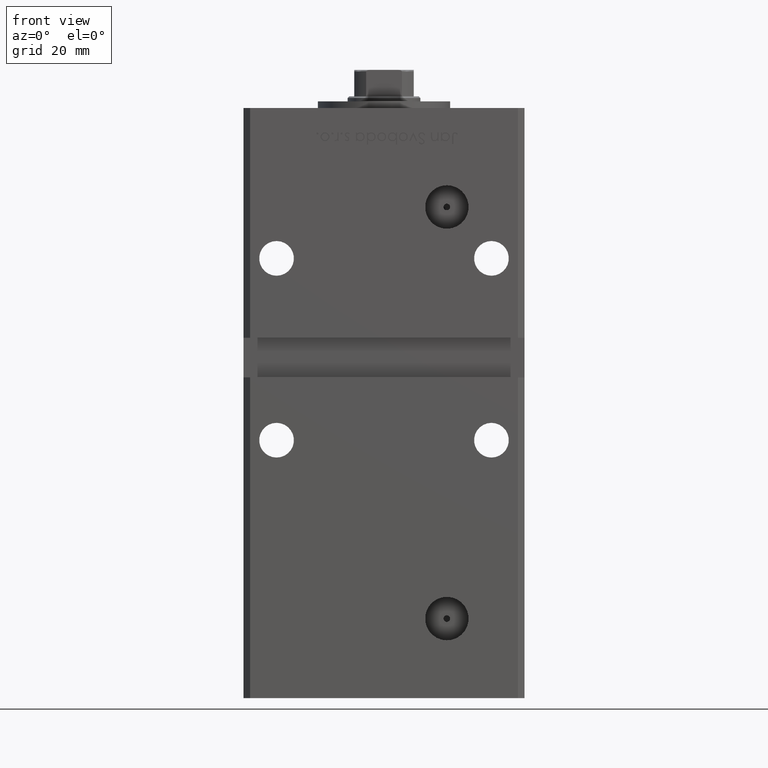
[diagram: clean part render]
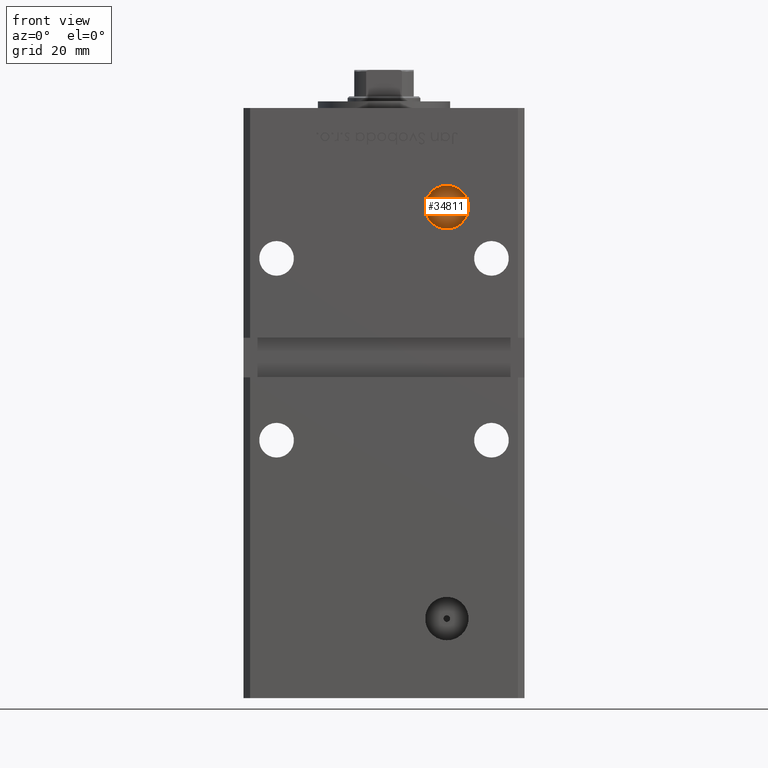
[diagram: same view with one face highlighted and labeled with its STEP entity id]
A machine part, front view. The second image highlights one B-rep face of the part: STEP entity #34811.
In plain terms, the highlighted planar face has unit normal (0, -1, 0).
Its self-contained STEP definition (entity closure, byte-faithful):
#587 = AXIS2_PLACEMENT_3D ( 'NONE', #44712, #43925, #44449 ) ;
#655 = EDGE_CURVE ( 'NONE', #7013, #27633, #42274, .T. ) ;
#936 = DIRECTION ( 'NONE',  ( 0.000000000000000000, -1.000000000000000000, 0.000000000000000000 ) ) ;
#1167 = AXIS2_PLACEMENT_3D ( 'NONE', #20500, #7879, #8138 ) ;
#3209 = CARTESIAN_POINT ( 'NONE',  ( 18.99999999999997513, -24.50000000000000711, 133.5000000000000000 ) ) ;
#3896 = ORIENTED_EDGE ( 'NONE', *, *, #6437, .F. ) ;
#4097 = FACE_OUTER_BOUND ( 'NONE', #39286, .T. ) ;
#6437 = EDGE_CURVE ( 'NONE', #36173, #33851, #28922, .T. ) ;
#7013 = VERTEX_POINT ( 'NONE', #11858 ) ;
#7056 = EDGE_CURVE ( 'NONE', #33851, #36173, #16886, .T. ) ;
#7192 = AXIS2_PLACEMENT_3D ( 'NONE', #29734, #46156, #13044 ) ;
#7879 = DIRECTION ( 'NONE',  ( 0.000000000000000000, -1.000000000000000000, 0.000000000000000000 ) ) ;
#8138 = DIRECTION ( 'NONE',  ( 0.000000000000000000, -0.000000000000000000, -1.000000000000000000 ) ) ;
#11858 = CARTESIAN_POINT ( 'NONE',  ( 18.99999999999997513, -24.50000000000000711, 132.5000000000000000 ) ) ;
#13044 = DIRECTION ( 'NONE',  ( 0.000000000000000000, 0.000000000000000000, -1.000000000000000000 ) ) ;
#13207 = CIRCLE ( 'NONE', #7192, 1.000000000000000888 ) ;
#15209 = ORIENTED_EDGE ( 'NONE', *, *, #7056, .F. ) ;
#16886 = CIRCLE ( 'NONE', #587, 6.580000000000002736 ) ;
#18163 = AXIS2_PLACEMENT_3D ( 'NONE', #21905, #936, #21100 ) ;
#18846 = EDGE_LOOP ( 'NONE', ( #35392, #37004 ) ) ;
#20500 = CARTESIAN_POINT ( 'NONE',  ( 0.000000000000000000, -24.50000000000000711, 0.000000000000000000 ) ) ;
#21100 = DIRECTION ( 'NONE',  ( 0.000000000000000000, 0.000000000000000000, -1.000000000000000000 ) ) ;
#21905 = CARTESIAN_POINT ( 'NONE',  ( 18.99999999999997513, -24.50000000000000711, 133.5000000000000000 ) ) ;
#27633 = VERTEX_POINT ( 'NONE', #41082 ) ;
#28922 = CIRCLE ( 'NONE', #41816, 6.580000000000002736 ) ;
#29734 = CARTESIAN_POINT ( 'NONE',  ( 18.99999999999997513, -24.50000000000000711, 133.5000000000000000 ) ) ;
#33851 = VERTEX_POINT ( 'NONE', #50480 ) ;
#34811 = ADVANCED_FACE ( 'NONE', ( #49316, #4097 ), #52831, .T. ) ;
#35392 = ORIENTED_EDGE ( 'NONE', *, *, #655, .F. ) ;
#35740 = EDGE_CURVE ( 'NONE', #27633, #7013, #13207, .T. ) ;
#36173 = VERTEX_POINT ( 'NONE', #36559 ) ;
#36559 = CARTESIAN_POINT ( 'NONE',  ( 18.99999999999997513, -24.50000000000000711, 140.0800000000000125 ) ) ;
#37004 = ORIENTED_EDGE ( 'NONE', *, *, #35740, .F. ) ;
#39286 = EDGE_LOOP ( 'NONE', ( #15209, #3896 ) ) ;
#41082 = CARTESIAN_POINT ( 'NONE',  ( 18.99999999999997513, -24.50000000000000711, 134.5000000000000000 ) ) ;
#41119 = DIRECTION ( 'NONE',  ( -0.000000000000000000, 1.000000000000000000, -0.000000000000000000 ) ) ;
#41816 = AXIS2_PLACEMENT_3D ( 'NONE', #3209, #41119, #45965 ) ;
#42274 = CIRCLE ( 'NONE', #18163, 1.000000000000000888 ) ;
#43925 = DIRECTION ( 'NONE',  ( -0.000000000000000000, 1.000000000000000000, -0.000000000000000000 ) ) ;
#44449 = DIRECTION ( 'NONE',  ( 0.000000000000000000, 0.000000000000000000, -1.000000000000000000 ) ) ;
#44712 = CARTESIAN_POINT ( 'NONE',  ( 18.99999999999997513, -24.50000000000000711, 133.5000000000000000 ) ) ;
#45965 = DIRECTION ( 'NONE',  ( 0.000000000000000000, 0.000000000000000000, -1.000000000000000000 ) ) ;
#46156 = DIRECTION ( 'NONE',  ( 0.000000000000000000, -1.000000000000000000, 0.000000000000000000 ) ) ;
#49316 = FACE_BOUND ( 'NONE', #18846, .T. ) ;
#50480 = CARTESIAN_POINT ( 'NONE',  ( 18.99999999999997513, -24.50000000000000711, 126.9200000000000017 ) ) ;
#52831 = PLANE ( 'NONE',  #1167 ) ;